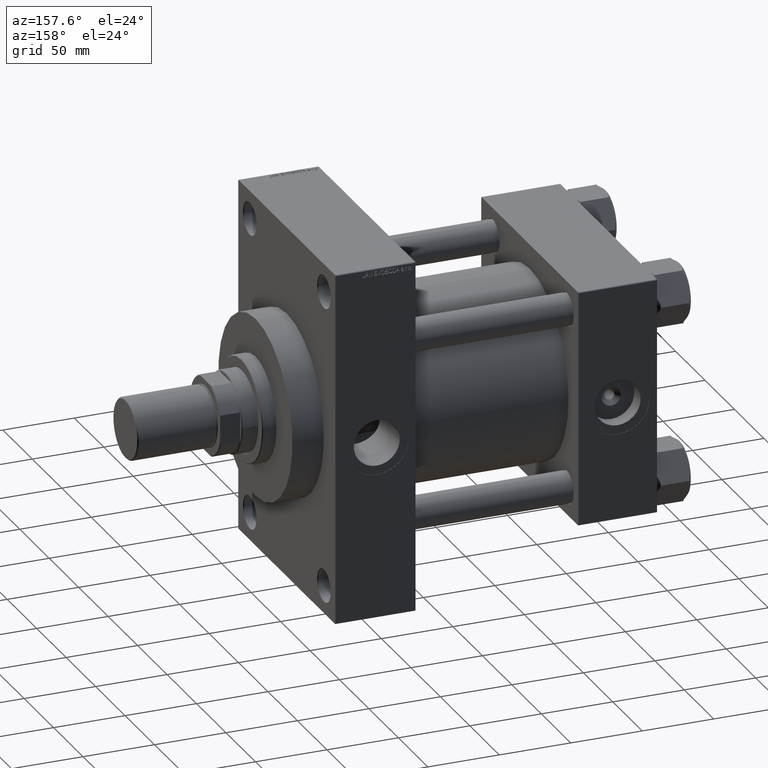
[diagram: clean part render]
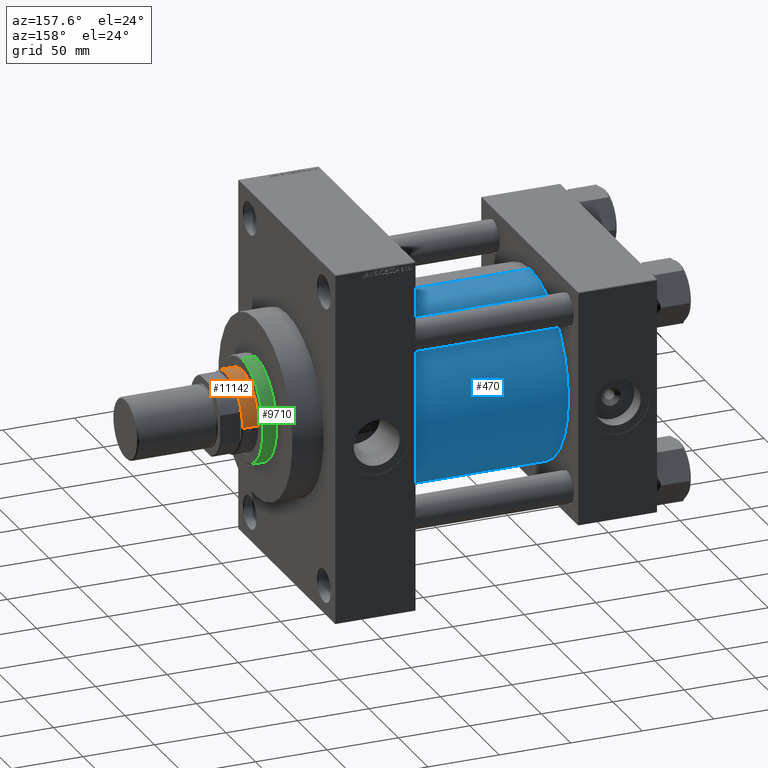
[diagram: same view with three faces highlighted in distinct colors, each labeled with its STEP entity id]
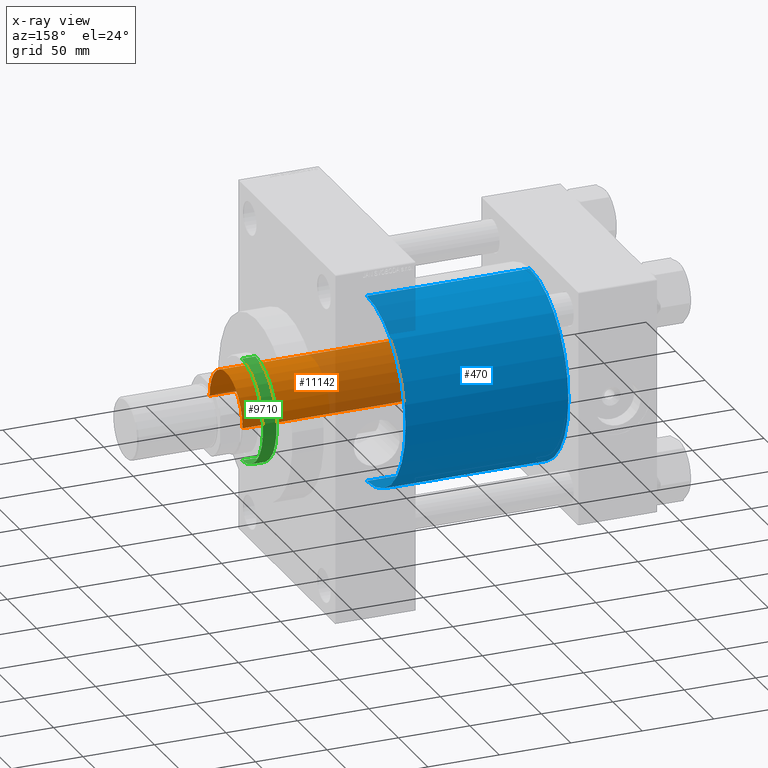
[diagram: x-ray of the same camera — body ghosted, the three highlighted faces saturated]
A machine part, auxiliary view with three faces highlighted in distinct colors.
The next image is the same camera in x-ray (body ghosted, the three faces saturated) — at least one of them is partly hidden behind the body in this view.
Their STEP definitions:

[orange] entity #11142 — the highlighted cylindrical surface (partial cylindrical patch) has radius 28 mm, axis along (-1, 0, 0).
#872 = EDGE_CURVE ( 'NONE', #10143, #27507, #12164, .T. ) ;
#4141 = DIRECTION ( 'NONE',  ( -0.000000000000000000, -0.000000000000000000, -1.000000000000000000 ) ) ;
#4456 = DIRECTION ( 'NONE',  ( -0.000000000000000000, -0.000000000000000000, -1.000000000000000000 ) ) ;
#5376 = CARTESIAN_POINT ( 'NONE',  ( -28.00000000000000000, 0.000000000000000000, 64.00000000000000000 ) ) ;
#5497 = AXIS2_PLACEMENT_3D ( 'NONE', #39047, #8716, #15553 ) ;
#7960 = DIRECTION ( 'NONE',  ( -0.000000000000000000, -0.000000000000000000, -1.000000000000000000 ) ) ;
#8716 = DIRECTION ( 'NONE',  ( 0.000000000000000000, 0.000000000000000000, -1.000000000000000000 ) ) ;
#10143 = VERTEX_POINT ( 'NONE', #5376 ) ;
#11130 = DIRECTION ( 'NONE',  ( 0.000000000000000000, 0.000000000000000000, 1.000000000000000000 ) ) ;
#11142 = ADVANCED_FACE ( 'NONE', ( #38507 ), #19788, .T. ) ;
#11460 = DIRECTION ( 'NONE',  ( -1.000000000000000000, 0.000000000000000000, 0.000000000000000000 ) ) ;
#12164 = CIRCLE ( 'NONE', #31544, 28.00000000000000000 ) ;
#14678 = DIRECTION ( 'NONE',  ( 1.000000000000000000, 0.000000000000000000, 0.000000000000000000 ) ) ;
#15553 = DIRECTION ( 'NONE',  ( 1.000000000000000000, 0.000000000000000000, 0.000000000000000000 ) ) ;
#16517 = LINE ( 'NONE', #43317, #49426 ) ;
#19788 = CYLINDRICAL_SURFACE ( 'NONE', #31110, 28.00000000000000000 ) ;
#20879 = EDGE_CURVE ( 'NONE', #48341, #47912, #45023, .T. ) ;
#24155 = EDGE_CURVE ( 'NONE', #47912, #10143, #16517, .T. ) ;
#24399 = LINE ( 'NONE', #39808, #25725 ) ;
#25725 = VECTOR ( 'NONE', #4456, 1000.000000000000000 ) ;
#26024 = ORIENTED_EDGE ( 'NONE', *, *, #24155, .T. ) ;
#27507 = VERTEX_POINT ( 'NONE', #48974 ) ;
#31110 = AXIS2_PLACEMENT_3D ( 'NONE', #35199, #4141, #11460 ) ;
#31544 = AXIS2_PLACEMENT_3D ( 'NONE', #38169, #11130, #14678 ) ;
#32020 = EDGE_LOOP ( 'NONE', ( #42941, #33600, #26024, #37617 ) ) ;
#33600 = ORIENTED_EDGE ( 'NONE', *, *, #20879, .T. ) ;
#33777 = CARTESIAN_POINT ( 'NONE',  ( -28.00000000000000000, 0.000000000000000000, 212.5000000000000000 ) ) ;
#35199 = CARTESIAN_POINT ( 'NONE',  ( 0.000000000000000000, 0.000000000000000000, 213.0000000000000000 ) ) ;
#37617 = ORIENTED_EDGE ( 'NONE', *, *, #872, .T. ) ;
#38169 = CARTESIAN_POINT ( 'NONE',  ( 0.000000000000000000, 0.000000000000000000, 64.00000000000000000 ) ) ;
#38507 = FACE_OUTER_BOUND ( 'NONE', #32020, .T. ) ;
#39047 = CARTESIAN_POINT ( 'NONE',  ( 0.000000000000000000, 0.000000000000000000, 212.5000000000000000 ) ) ;
#39808 = CARTESIAN_POINT ( 'NONE',  ( 28.00000000000000000, 3.429011037612589276E-15, 213.0000000000000000 ) ) ;
#42323 = EDGE_CURVE ( 'NONE', #48341, #27507, #24399, .T. ) ;
#42941 = ORIENTED_EDGE ( 'NONE', *, *, #42323, .F. ) ;
#43317 = CARTESIAN_POINT ( 'NONE',  ( -28.00000000000000000, 0.000000000000000000, 213.0000000000000000 ) ) ;
#43760 = CARTESIAN_POINT ( 'NONE',  ( 28.00000000000000000, 3.429011037612589276E-15, 212.5000000000000000 ) ) ;
#45023 = CIRCLE ( 'NONE', #5497, 28.00000000000000000 ) ;
#47912 = VERTEX_POINT ( 'NONE', #33777 ) ;
#48341 = VERTEX_POINT ( 'NONE', #43760 ) ;
#48974 = CARTESIAN_POINT ( 'NONE',  ( 28.00000000000000000, 3.429011037612589276E-15, 64.00000000000000000 ) ) ;
#49426 = VECTOR ( 'NONE', #7960, 1000.000000000000000 ) ;

[blue] entity #470 — the highlighted cylindrical surface (partial cylindrical patch) has radius 65.5 mm, axis along (-1, -0, -0).
#470 = ADVANCED_FACE ( 'NONE', ( #1642 ), #47861, .T. ) ;
#1317 = VECTOR ( 'NONE', #34405, 1000.000000000000000 ) ;
#1642 = FACE_OUTER_BOUND ( 'NONE', #11133, .T. ) ;
#4208 = AXIS2_PLACEMENT_3D ( 'NONE', #6757, #44913, #25713 ) ;
#5849 = CARTESIAN_POINT ( 'NONE',  ( 169.0000000000000000, 5.419351320449953395E-15, -65.50000000000001421 ) ) ;
#6757 = CARTESIAN_POINT ( 'NONE',  ( 169.0000000000000000, -2.602085213965210642E-15, 0.000000000000000000 ) ) ;
#8070 = ORIENTED_EDGE ( 'NONE', *, *, #32366, .F. ) ;
#8617 = VERTEX_POINT ( 'NONE', #37653 ) ;
#8794 = CARTESIAN_POINT ( 'NONE',  ( 169.0000000000000000, -2.602085213965210642E-15, 65.50000000000001421 ) ) ;
#9457 = CARTESIAN_POINT ( 'NONE',  ( 169.0000000000000000, -2.602085213965210642E-15, 0.000000000000000000 ) ) ;
#10641 = ORIENTED_EDGE ( 'NONE', *, *, #28252, .T. ) ;
#11133 = EDGE_LOOP ( 'NONE', ( #11596, #28020, #10641, #8070 ) ) ;
#11596 = ORIENTED_EDGE ( 'NONE', *, *, #23233, .F. ) ;
#12597 = VERTEX_POINT ( 'NONE', #31791 ) ;
#14242 = DIRECTION ( 'NONE',  ( 0.000000000000000000, 0.000000000000000000, 1.000000000000000000 ) ) ;
#17467 = CARTESIAN_POINT ( 'NONE',  ( 54.99999999999999289, -2.602085213965210642E-15, 0.000000000000000000 ) ) ;
#18542 = CARTESIAN_POINT ( 'NONE',  ( 169.0000000000000000, 5.419351320449953395E-15, -65.50000000000001421 ) ) ;
#19696 = CARTESIAN_POINT ( 'NONE',  ( 169.0000000000000000, -2.602085213965210642E-15, 65.50000000000001421 ) ) ;
#21048 = VERTEX_POINT ( 'NONE', #18542 ) ;
#21255 = DIRECTION ( 'NONE',  ( -1.000000000000000000, -0.000000000000000000, -0.000000000000000000 ) ) ;
#22248 = DIRECTION ( 'NONE',  ( 1.000000000000000000, -0.000000000000000000, -0.000000000000000000 ) ) ;
#23233 = EDGE_CURVE ( 'NONE', #21048, #44436, #24392, .T. ) ;
#24392 = CIRCLE ( 'NONE', #4208, 65.50000000000001421 ) ;
#24867 = DIRECTION ( 'NONE',  ( -1.000000000000000000, -0.000000000000000000, -0.000000000000000000 ) ) ;
#25042 = LINE ( 'NONE', #5849, #41945 ) ;
#25713 = DIRECTION ( 'NONE',  ( 0.000000000000000000, 0.000000000000000000, -1.000000000000000000 ) ) ;
#27621 = AXIS2_PLACEMENT_3D ( 'NONE', #9457, #24867, #14242 ) ;
#28020 = ORIENTED_EDGE ( 'NONE', *, *, #44207, .T. ) ;
#28252 = EDGE_CURVE ( 'NONE', #8617, #12597, #42316, .T. ) ;
#31791 = CARTESIAN_POINT ( 'NONE',  ( 54.99999999999999289, -2.602085213965210642E-15, 65.50000000000001421 ) ) ;
#31824 = AXIS2_PLACEMENT_3D ( 'NONE', #17467, #22248, #49281 ) ;
#32366 = EDGE_CURVE ( 'NONE', #44436, #12597, #41978, .T. ) ;
#34405 = DIRECTION ( 'NONE',  ( -1.000000000000000000, -0.000000000000000000, -0.000000000000000000 ) ) ;
#37653 = CARTESIAN_POINT ( 'NONE',  ( 54.99999999999999289, 5.419351320449953395E-15, -65.50000000000001421 ) ) ;
#41945 = VECTOR ( 'NONE', #21255, 1000.000000000000000 ) ;
#41978 = LINE ( 'NONE', #8794, #1317 ) ;
#42316 = CIRCLE ( 'NONE', #31824, 65.50000000000001421 ) ;
#44207 = EDGE_CURVE ( 'NONE', #21048, #8617, #25042, .T. ) ;
#44436 = VERTEX_POINT ( 'NONE', #19696 ) ;
#44913 = DIRECTION ( 'NONE',  ( 1.000000000000000000, 0.000000000000000000, 0.000000000000000000 ) ) ;
#47861 = CYLINDRICAL_SURFACE ( 'NONE', #27621, 65.50000000000001421 ) ;
#49281 = DIRECTION ( 'NONE',  ( 0.000000000000000000, 0.000000000000000000, 1.000000000000000000 ) ) ;

[green] entity #9710 — the highlighted cylindrical surface (partial cylindrical patch) has radius 36 mm, axis along (-1, 0, 0).
#2558 = CARTESIAN_POINT ( 'NONE',  ( -36.00000000000000000, 0.000000000000000000, 53.26000000000000512 ) ) ;
#3446 = AXIS2_PLACEMENT_3D ( 'NONE', #45189, #41390, #25243 ) ;
#3771 = CARTESIAN_POINT ( 'NONE',  ( -36.00000000000000000, 0.000000000000000000, 43.25999999999999801 ) ) ;
#5768 = EDGE_CURVE ( 'NONE', #41048, #7026, #7521, .T. ) ;
#6239 = DIRECTION ( 'NONE',  ( -1.000000000000000000, 0.000000000000000000, 0.000000000000000000 ) ) ;
#6873 = AXIS2_PLACEMENT_3D ( 'NONE', #43395, #32026, #6239 ) ;
#7026 = VERTEX_POINT ( 'NONE', #20248 ) ;
#7132 = ORIENTED_EDGE ( 'NONE', *, *, #24874, .T. ) ;
#7521 = CIRCLE ( 'NONE', #30931, 36.00000000000000000 ) ;
#9333 = DIRECTION ( 'NONE',  ( -0.000000000000000000, -0.000000000000000000, -1.000000000000000000 ) ) ;
#9710 = ADVANCED_FACE ( 'NONE', ( #47681 ), #27993, .T. ) ;
#10615 = DIRECTION ( 'NONE',  ( -0.000000000000000000, -0.000000000000000000, -1.000000000000000000 ) ) ;
#12158 = CARTESIAN_POINT ( 'NONE',  ( 36.00000000000000000, 4.408728476930470856E-15, 52.75999999999999091 ) ) ;
#13972 = DIRECTION ( 'NONE',  ( 1.000000000000000000, 0.000000000000000000, 0.000000000000000000 ) ) ;
#14280 = VERTEX_POINT ( 'NONE', #12158 ) ;
#17472 = EDGE_LOOP ( 'NONE', ( #28634, #7132, #31008, #48662 ) ) ;
#20204 = CARTESIAN_POINT ( 'NONE',  ( 36.00000000000000000, 4.408728476930470856E-15, 53.26000000000000512 ) ) ;
#20248 = CARTESIAN_POINT ( 'NONE',  ( 36.00000000000000000, 4.408728476930470856E-15, 43.25999999999999801 ) ) ;
#21070 = CARTESIAN_POINT ( 'NONE',  ( 0.000000000000000000, 0.000000000000000000, 43.25999999999999801 ) ) ;
#24100 = VERTEX_POINT ( 'NONE', #37286 ) ;
#24874 = EDGE_CURVE ( 'NONE', #14280, #24100, #40549, .T. ) ;
#25243 = DIRECTION ( 'NONE',  ( 1.000000000000000000, 0.000000000000000000, 0.000000000000000000 ) ) ;
#27119 = EDGE_CURVE ( 'NONE', #24100, #41048, #44244, .T. ) ;
#27993 = CYLINDRICAL_SURFACE ( 'NONE', #6873, 36.00000000000000000 ) ;
#28634 = ORIENTED_EDGE ( 'NONE', *, *, #45036, .F. ) ;
#30931 = AXIS2_PLACEMENT_3D ( 'NONE', #21070, #36478, #13972 ) ;
#31008 = ORIENTED_EDGE ( 'NONE', *, *, #27119, .T. ) ;
#32026 = DIRECTION ( 'NONE',  ( -0.000000000000000000, -0.000000000000000000, -1.000000000000000000 ) ) ;
#36478 = DIRECTION ( 'NONE',  ( 0.000000000000000000, 0.000000000000000000, 1.000000000000000000 ) ) ;
#37286 = CARTESIAN_POINT ( 'NONE',  ( -36.00000000000000000, 0.000000000000000000, 52.75999999999999091 ) ) ;
#39033 = VECTOR ( 'NONE', #10615, 1000.000000000000000 ) ;
#40549 = CIRCLE ( 'NONE', #3446, 36.00000000000000000 ) ;
#41048 = VERTEX_POINT ( 'NONE', #3771 ) ;
#41192 = VECTOR ( 'NONE', #9333, 1000.000000000000000 ) ;
#41390 = DIRECTION ( 'NONE',  ( 0.000000000000000000, 0.000000000000000000, -1.000000000000000000 ) ) ;
#43395 = CARTESIAN_POINT ( 'NONE',  ( 0.000000000000000000, 0.000000000000000000, 53.26000000000000512 ) ) ;
#43707 = LINE ( 'NONE', #20204, #41192 ) ;
#44244 = LINE ( 'NONE', #2558, #39033 ) ;
#45036 = EDGE_CURVE ( 'NONE', #14280, #7026, #43707, .T. ) ;
#45189 = CARTESIAN_POINT ( 'NONE',  ( 0.000000000000000000, 0.000000000000000000, 52.75999999999999091 ) ) ;
#47681 = FACE_OUTER_BOUND ( 'NONE', #17472, .T. ) ;
#48662 = ORIENTED_EDGE ( 'NONE', *, *, #5768, .T. ) ;